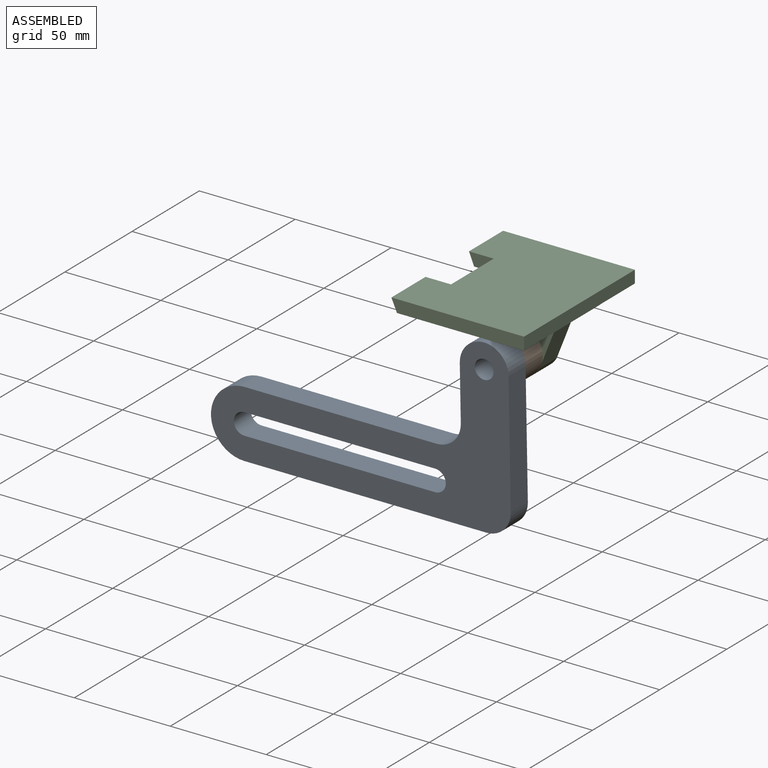
[diagram: assembled view]
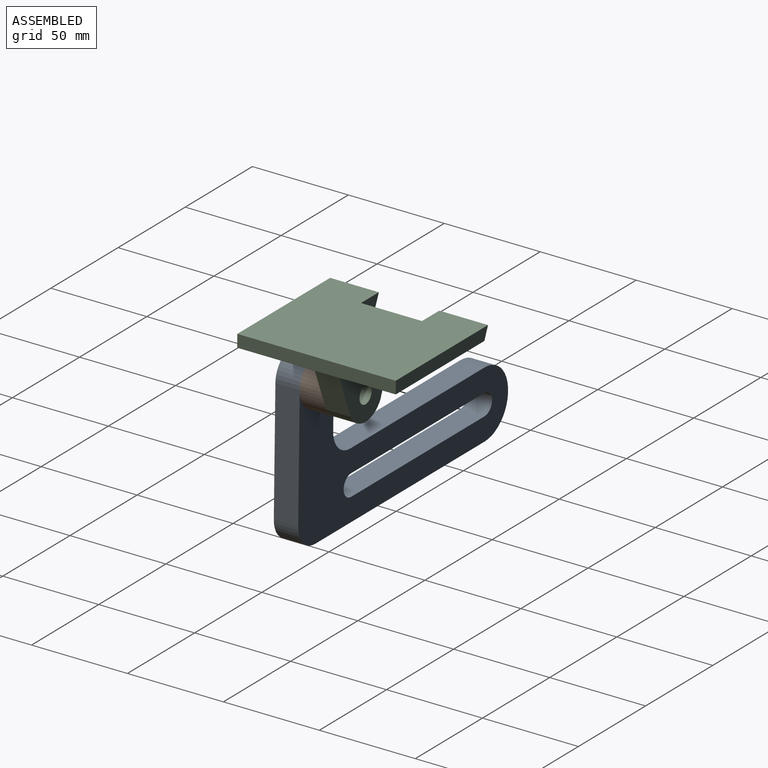
[diagram: assembled view, second angle]
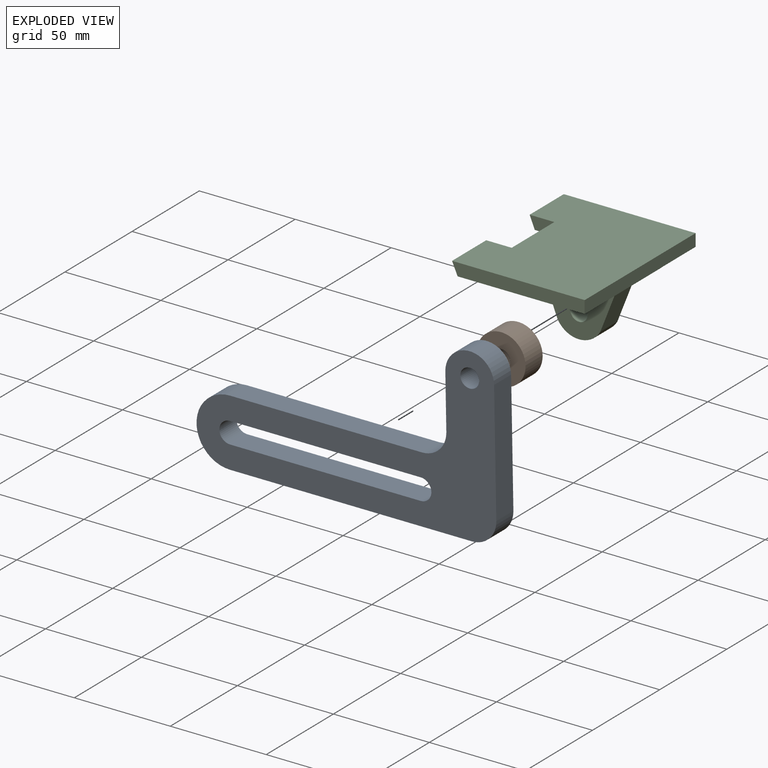
[diagram: exploded view]
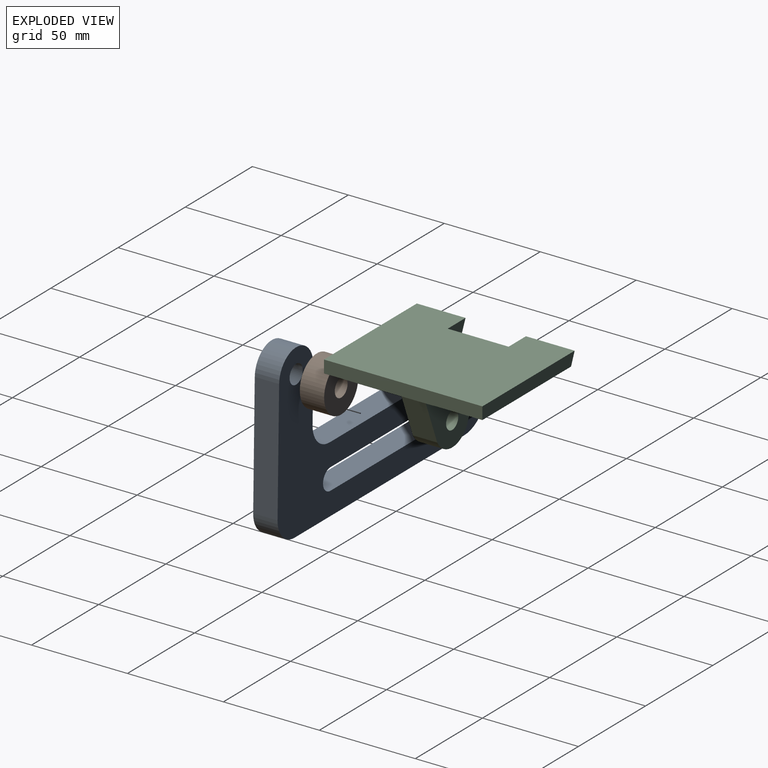
[diagram: exploded view, second angle]
ASSEMBLY  parts=3 mates=2
PART A: 15 faces, bbox 156.2x12.7x89.3 mm
  f0: cylinder r=5.56mm len=12.7mm, axis (0,1,0), area 221.7mm2, adj f1,f8,f11,f12
  f1: plane 99.37x12.7mm, normal (0,0,-1), area 1262mm2, adj f0,f2,f11,f12
  f2: cylinder r=5.56mm len=12.7mm, axis (0,1,0), area 221.7mm2, adj f1,f8,f11,f12
  f3: plane 63.81x12.7mm, normal (1,0,0.02), area 810.6mm2, adj f4,f11,f12,f13
  f4: cylinder r=12.7mm len=25.4mm, axis (0,1,0), area 504.3mm2, adj f3,f5,f11,f12
  f5: plane 28.71x12.7mm, normal (-1,0,-0.02), area 364.7mm2, adj f4,f11,f12,f14
  f6: plane 100.03x12.7mm, normal (0,0,1), area 1270.4mm2, adj f7,f11,f12,f14
  f7: cylinder r=17.46mm len=34.93mm, axis (0,1,0), area 696.7mm2, adj f6,f9,f11,f12
  f8: plane 99.37x12.7mm, normal (0,0,1), area 1262mm2, adj f0,f2,f11,f12
  f9: plane 126.08x12.7mm, normal (0,0,-1), area 1601.2mm2, adj f7,f11,f12,f13
  f10: cylinder r=4.9mm len=12.7mm, axis (0,1,0), area 391.2mm2, adj f11,f12
  f11: plane 156.24x89.26mm, normal (0,-1,0), area 5357.3mm2, adj f0,f1,f2,f3,f4,f5,f6,f7
  f12: plane 156.24x89.26mm, normal (0,1,0), area 5357.3mm2, adj f0,f1,f2,f3,f4,f5,f6,f7
  f13: cylinder r=12.7mm len=12.94mm, axis (0,-1,0), area 256.3mm2, adj f3,f9,f11,f12
  f14: cylinder r=12.7mm len=12.94mm, axis (0,1,0), area 256.3mm2, adj f5,f6,f11,f12
PART B: 4 faces, bbox 25.4x12.7x25.4 mm
  f0: cylinder r=4.76mm len=12.7mm, axis (0,1,0), area 380mm2, adj f2,f3
  f1: cylinder r=12.7mm len=25.4mm, axis (0,1,0), area 1013.4mm2, adj f2,f3
  f2: plane 25.4x25.4mm, normal (0,-1,0), area 435.5mm2, adj f0,f1
  f3: plane 25.4x25.4mm, normal (0,1,0), area 435.5mm2, adj f0,f1
PART C: 18 faces, bbox 69.1x82.6x39.2 mm
  f0: plane 53.07x0.09mm, normal (0,1,0), area 5mm2, adj f1,f2,f4,f14
  f1: plane 66.21x57.15mm, normal (0,0,-1), area 2822.5mm2, adj f0,f2,f4,f5,f7,f9,f10,f11
  f2: plane 82.55x6.54mm, normal (1,0,0), area 537.6mm2, adj f0,f1,f3,f13,f14,f16
  f3: plane 82.55x69.11mm, normal (0,0,1), area 5272.8mm2, adj f2,f4,f11,f12,f13,f15,f16,f17
  f4: plane 31.75x6.54mm, normal (-0.92,0,-0.39), area 225.9mm2, adj f0,f1,f3,f11,f17
  f5: plane 26.07x12.7mm, normal (-0.93,0,-0.37), area 355.7mm2, adj f1,f6,f9,f10
  f6: cylinder r=12.77mm len=22.3mm, axis (0,1,0), area 344.5mm2, adj f5,f7,f9,f10
  f7: plane 26.07x12.7mm, normal (0.93,0,-0.37), area 355.7mm2, adj f1,f6,f9,f10
  f8: cylinder r=4.51mm len=12.7mm, axis (0,1,0), area 360.1mm2, adj f9,f10
  f9: plane 42.75x32.62mm, normal (0,-1,0), area 887.8mm2, adj f1,f5,f6,f7,f8
  f10: plane 42.75x32.62mm, normal (0,1,0), area 887.8mm2, adj f1,f5,f6,f7,f8
  f11: plane 16.08x6.54mm, normal (0,1,0), area 86.5mm2, adj f1,f3,f4,f12
  f12: plane 25.4x6.54mm, normal (-0.91,0,-0.4), area 181.7mm2, adj f1,f3,f11,f13
  f13: plane 69.11x6.54mm, normal (0,-1,0), area 442.6mm2, adj f1,f2,f3,f12
  f14: plane 66.01x25.4mm, normal (0,0,-1), area 1676.6mm2, adj f0,f2,f15,f16,f17
  f15: plane 25.4x6.45mm, normal (-0.92,0,-0.38), area 177.4mm2, adj f3,f14,f16,f17
  f16: plane 68.69x6.45mm, normal (0,1,0), area 434.2mm2, adj f2,f3,f14,f15
  f17: plane 15.63x6.45mm, normal (0,-1,0), area 83.2mm2, adj f3,f4,f14,f15
PLACE A t=(-23.66,88.2,-8.02)mm
PLACE B t=(101.24,100.9,51.09)mm
PLACE C t=(101.24,113.6,51.09)mm
MATE revolute B.f0 <-> C.f8  axis (0,1,0) through (101.24,107.25,51.09)mm
MATE fastened B.f1 <-> A.f4  axis (0,-1,0) through (101.24,94.55,51.09)mm
